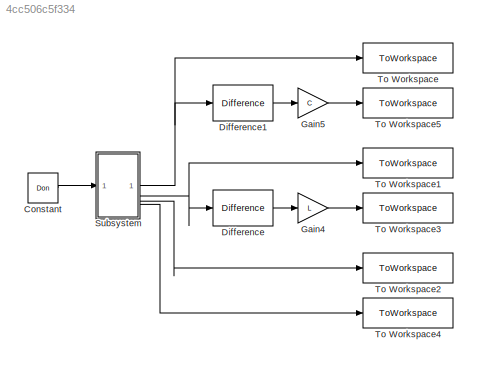
MODEL slx_4cc506c5f334
KIND model
CONFIG AbsTol = auto
CONFIG EnableMultiTasking = off
CONFIG FixedStep = 1/(1000 * fsw)
CONFIG MaxStep = auto
CONFIG MinStep = auto
CONFIG RelTol = 1e-3
CONFIG SampleTimeConstraint = Unconstrained
CONFIG SolverName = FixedStepAuto
CONFIG StartTime = 0.0
CONFIG StopTime = 0.001
BLOCK [Constant] Constant
  Value = Don
BLOCK [Reference] Difference  REF=simulink/Discrete/Difference
  SourceBlock = simulink/Discrete/Difference
  SourceType = Difference
BLOCK [Reference] Difference1  REF=simulink/Discrete/Difference
  SourceBlock = simulink/Discrete/Difference
  SourceType = Difference
BLOCK [Gain] Gain4
  Gain = L
BLOCK [Gain] Gain5
  Gain = C
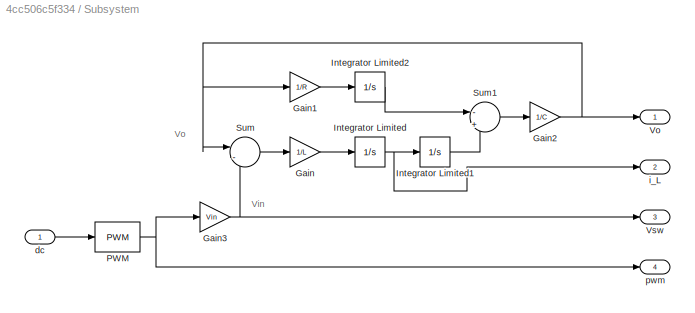
BLOCK [SubSystem] Subsystem
BLOCK [Gain] Subsystem/Gain
  Gain = 1/L
BLOCK [Gain] Subsystem/Gain1
  Gain = 1/R
BLOCK [Gain] Subsystem/Gain2
  Gain = 1/C
BLOCK [Gain] Subsystem/Gain3
  Gain = Vin
BLOCK [Integrator] Subsystem/Integrator Limited
  LimitOutput = on
  LowerSaturationLimit = 0
  UpperSaturationLimit = 10000
BLOCK [Integrator] Subsystem/Integrator Limited1
  LimitOutput = on
  LowerSaturationLimit = 0
  UpperSaturationLimit = 10000
BLOCK [Integrator] Subsystem/Integrator Limited2
  LimitOutput = on
  LowerSaturationLimit = 0
  UpperSaturationLimit = 10000
BLOCK [Reference] Subsystem/PWM  REF=simulink/Discontinuities/PWM
  DisableCoverage = on
  SourceBlock = simulink/Discontinuities/PWM
  SourceType = PWM
BLOCK [Sum] Subsystem/Sum
  Inputs = |-+
BLOCK [Sum] Subsystem/Sum1
  Inputs = -|+
  NameLocation = top
BLOCK [Outport] Subsystem/Vo
BLOCK [Outport] Subsystem/Vsw
  Port = 3
BLOCK [Inport] Subsystem/dc
BLOCK [Outport] Subsystem/i_L
  Port = 2
BLOCK [Outport] Subsystem/pwm
  Port = 4
BLOCK [ToWorkspace] To Workspace
  FixptAsFi = on
  MaxDataPoints = inf
  SampleTime = -1
  SaveFormat = Structure With Time
  VariableName = Vo
BLOCK [ToWorkspace] To Workspace1
  FixptAsFi = on
  MaxDataPoints = inf
  SampleTime = -1
  SaveFormat = Structure With Time
  VariableName = i_L
BLOCK [ToWorkspace] To Workspace2
  FixptAsFi = on
  MaxDataPoints = inf
  SampleTime = -1
  SaveFormat = Structure With Time
  VariableName = Vsw
BLOCK [ToWorkspace] To Workspace3
  FixptAsFi = on
  MaxDataPoints = inf
  SampleTime = -1
  SaveFormat = Structure With Time
  VariableName = V_L
BLOCK [ToWorkspace] To Workspace4
  FixptAsFi = on
  MaxDataPoints = inf
  SampleTime = -1
  SaveFormat = Structure With Time
  VariableName = pwm
BLOCK [ToWorkspace] To Workspace5
  FixptAsFi = on
  MaxDataPoints = inf
  SampleTime = -1
  SaveFormat = Structure With Time
  VariableName = i_co
ANNOTATION Subsystem: Vin
ANNOTATION Subsystem: Vo
LINE Constant:1 -> Subsystem:1
LINE Difference1:1 -> Gain5:1
LINE Difference:1 -> Gain4:1
LINE Gain4:1 -> To Workspace3:1
LINE Gain5:1 -> To Workspace5:1
LINE Subsystem/Gain1:1 -> Subsystem/Integrator Limited2:1
NET Subsystem/Gain2:1 -> Subsystem/Gain1:1, Subsystem/Sum:1, Subsystem/Vo:1
NET Subsystem/Gain3:1 -> Subsystem/Sum:2, Subsystem/Vsw:1
LINE Subsystem/Gain:1 -> Subsystem/Integrator Limited:1
LINE Subsystem/Integrator Limited1:1 -> Subsystem/Sum1:2
LINE Subsystem/Integrator Limited2:1 -> Subsystem/Sum1:1
NET Subsystem/Integrator Limited:1 -> Subsystem/Integrator Limited1:1, Subsystem/i_L:1
NET Subsystem/PWM:1 -> Subsystem/Gain3:1, Subsystem/pwm:1
LINE Subsystem/Sum1:1 -> Subsystem/Gain2:1
LINE Subsystem/Sum:1 -> Subsystem/Gain:1
LINE Subsystem/dc:1 -> Subsystem/PWM:1
NET Subsystem:1 -> Difference1:1, To Workspace:1
NET Subsystem:2 -> Difference:1, To Workspace1:1
LINE Subsystem:3 -> To Workspace2:1
LINE Subsystem:4 -> To Workspace4:1
note: NET lines group one-source signal fan-out (src -> all destinations, sorted); 1:1 wires keep LINE
